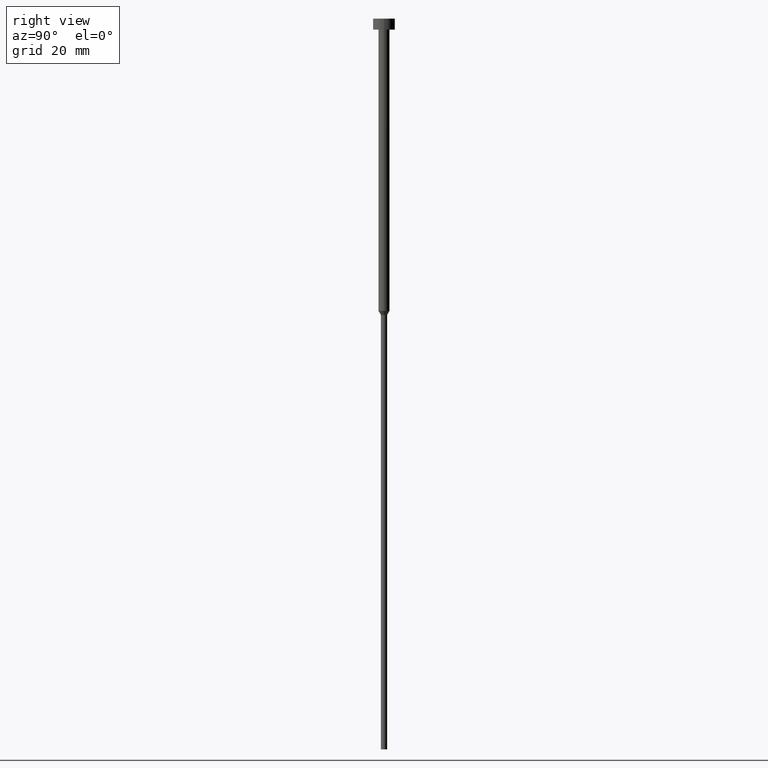
[diagram: clean part render]
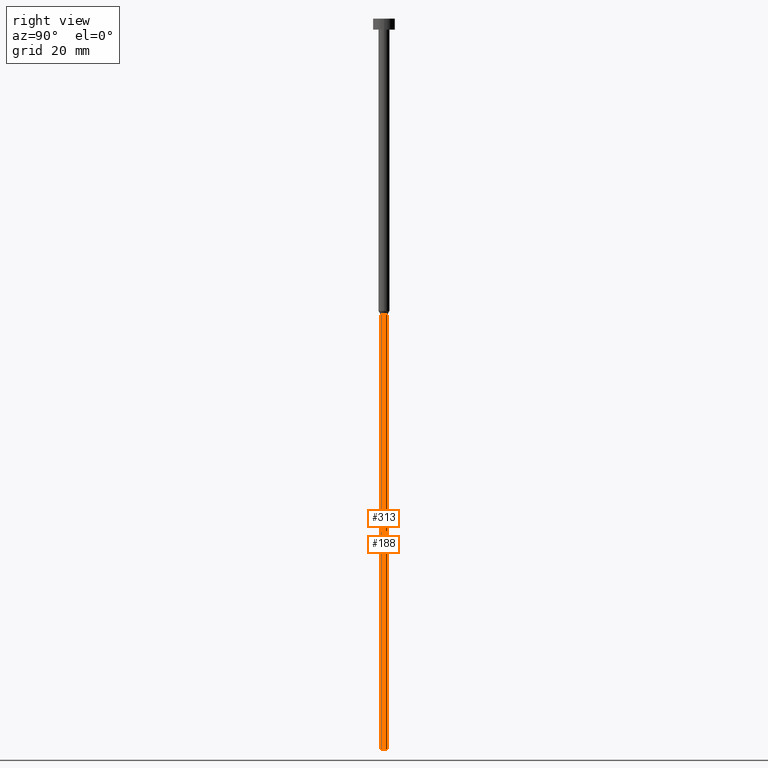
[diagram: same view with one multi-face feature highlighted, each face labeled with its STEP entity id]
A machine part, right view. The highlighted faces form ONE feature: a constant-radius fillet chain: 2 tangent blend faces with common blend radius 0.85 mm. The faces share edges in the B-rep.
Their STEP definitions:
[1] entity #188 (Cylinder):
#6 = VERTEX_POINT ( 'NONE', #299 ) ;
#10 = VERTEX_POINT ( 'NONE', #164 ) ;
#13 = CARTESIAN_POINT ( 'NONE',  ( -0.8499999999999998668, 1.040949779275250017E-16, -200.0000000000000000 ) ) ;
#30 = DIRECTION ( 'NONE',  ( -0.000000000000000000, -0.000000000000000000, 1.000000000000000000 ) ) ;
#35 = EDGE_CURVE ( 'NONE', #63, #48, #183, .T. ) ;
#36 = FACE_OUTER_BOUND ( 'NONE', #285, .T. ) ;
#41 = ORIENTED_EDGE ( 'NONE', *, *, #35, .T. ) ;
#45 = AXIS2_PLACEMENT_3D ( 'NONE', #275, #302, #49 ) ;
#48 = VERTEX_POINT ( 'NONE', #13 ) ;
#49 = DIRECTION ( 'NONE',  ( 1.000000000000000000, 0.000000000000000000, 0.000000000000000000 ) ) ;
#63 = VERTEX_POINT ( 'NONE', #337 ) ;
#100 = DIRECTION ( 'NONE',  ( 1.000000000000000000, 0.000000000000000000, 0.000000000000000000 ) ) ;
#111 = ORIENTED_EDGE ( 'NONE', *, *, #297, .T. ) ;
#118 = ORIENTED_EDGE ( 'NONE', *, *, #198, .F. ) ;
#142 = EDGE_CURVE ( 'NONE', #6, #10, #344, .T. ) ;
#145 = LINE ( 'NONE', #250, #350 ) ;
#164 = CARTESIAN_POINT ( 'NONE',  ( -0.8499999999999998668, 1.040949779275250017E-16, -81.12583302491977122 ) ) ;
#183 = CIRCLE ( 'NONE', #45, 0.8499999999999998668 ) ;
#188 = ADVANCED_FACE ( 'NONE', ( #36 ), #206, .T. ) ;
#198 = EDGE_CURVE ( 'NONE', #63, #6, #145, .T. ) ;
#200 = AXIS2_PLACEMENT_3D ( 'NONE', #254, #314, #286 ) ;
#206 = CYLINDRICAL_SURFACE ( 'NONE', #200, 0.8499999999999998668 ) ;
#225 = CARTESIAN_POINT ( 'NONE',  ( 0.000000000000000000, 0.000000000000000000, -81.12583302491977122 ) ) ;
#250 = CARTESIAN_POINT ( 'NONE',  ( 0.8499999999999998668, 0.000000000000000000, 0.000000000000000000 ) ) ;
#254 = CARTESIAN_POINT ( 'NONE',  ( 0.000000000000000000, 0.000000000000000000, 0.000000000000000000 ) ) ;
#274 = DIRECTION ( 'NONE',  ( -0.000000000000000000, -0.000000000000000000, 1.000000000000000000 ) ) ;
#275 = CARTESIAN_POINT ( 'NONE',  ( 0.000000000000000000, 0.000000000000000000, -200.0000000000000000 ) ) ;
#276 = CARTESIAN_POINT ( 'NONE',  ( -0.8499999999999998668, 1.040949779275250017E-16, 0.000000000000000000 ) ) ;
#285 = EDGE_LOOP ( 'NONE', ( #41, #111, #310, #118 ) ) ;
#286 = DIRECTION ( 'NONE',  ( 1.000000000000000000, 0.000000000000000000, 0.000000000000000000 ) ) ;
#287 = VECTOR ( 'NONE', #274, 1000.000000000000000 ) ;
#297 = EDGE_CURVE ( 'NONE', #48, #10, #301, .T. ) ;
#299 = CARTESIAN_POINT ( 'NONE',  ( 0.8499999999999998668, 0.000000000000000000, -81.12583302491977122 ) ) ;
#301 = LINE ( 'NONE', #276, #287 ) ;
#302 = DIRECTION ( 'NONE',  ( -0.000000000000000000, -0.000000000000000000, 1.000000000000000000 ) ) ;
#310 = ORIENTED_EDGE ( 'NONE', *, *, #142, .F. ) ;
#311 = DIRECTION ( 'NONE',  ( -0.000000000000000000, -0.000000000000000000, 1.000000000000000000 ) ) ;
#314 = DIRECTION ( 'NONE',  ( -0.000000000000000000, -0.000000000000000000, 1.000000000000000000 ) ) ;
#326 = AXIS2_PLACEMENT_3D ( 'NONE', #225, #30, #100 ) ;
#337 = CARTESIAN_POINT ( 'NONE',  ( 0.8499999999999998668, 0.000000000000000000, -200.0000000000000000 ) ) ;
#344 = CIRCLE ( 'NONE', #326, 0.8499999999999998668 ) ;
#350 = VECTOR ( 'NONE', #311, 1000.000000000000000 ) ;
[2] entity #313 (Cylinder):
#6 = VERTEX_POINT ( 'NONE', #299 ) ;
#8 = ORIENTED_EDGE ( 'NONE', *, *, #166, .F. ) ;
#10 = VERTEX_POINT ( 'NONE', #164 ) ;
#11 = DIRECTION ( 'NONE',  ( -0.000000000000000000, -0.000000000000000000, 1.000000000000000000 ) ) ;
#13 = CARTESIAN_POINT ( 'NONE',  ( -0.8499999999999998668, 1.040949779275250017E-16, -200.0000000000000000 ) ) ;
#43 = AXIS2_PLACEMENT_3D ( 'NONE', #117, #108, #239 ) ;
#48 = VERTEX_POINT ( 'NONE', #13 ) ;
#55 = EDGE_CURVE ( 'NONE', #48, #63, #189, .T. ) ;
#63 = VERTEX_POINT ( 'NONE', #337 ) ;
#72 = AXIS2_PLACEMENT_3D ( 'NONE', #308, #11, #96 ) ;
#89 = ORIENTED_EDGE ( 'NONE', *, *, #198, .T. ) ;
#96 = DIRECTION ( 'NONE',  ( 1.000000000000000000, 0.000000000000000000, 0.000000000000000000 ) ) ;
#108 = DIRECTION ( 'NONE',  ( -0.000000000000000000, -0.000000000000000000, 1.000000000000000000 ) ) ;
#109 = FACE_OUTER_BOUND ( 'NONE', #223, .T. ) ;
#117 = CARTESIAN_POINT ( 'NONE',  ( 0.000000000000000000, 0.000000000000000000, 0.000000000000000000 ) ) ;
#128 = DIRECTION ( 'NONE',  ( 1.000000000000000000, 0.000000000000000000, 0.000000000000000000 ) ) ;
#145 = LINE ( 'NONE', #250, #350 ) ;
#164 = CARTESIAN_POINT ( 'NONE',  ( -0.8499999999999998668, 1.040949779275250017E-16, -81.12583302491977122 ) ) ;
#166 = EDGE_CURVE ( 'NONE', #10, #6, #211, .T. ) ;
#189 = CIRCLE ( 'NONE', #245, 0.8499999999999998668 ) ;
#196 = ORIENTED_EDGE ( 'NONE', *, *, #297, .F. ) ;
#198 = EDGE_CURVE ( 'NONE', #63, #6, #145, .T. ) ;
#211 = CIRCLE ( 'NONE', #72, 0.8499999999999998668 ) ;
#223 = EDGE_LOOP ( 'NONE', ( #196, #304, #89, #8 ) ) ;
#239 = DIRECTION ( 'NONE',  ( 1.000000000000000000, 0.000000000000000000, 0.000000000000000000 ) ) ;
#245 = AXIS2_PLACEMENT_3D ( 'NONE', #280, #252, #128 ) ;
#250 = CARTESIAN_POINT ( 'NONE',  ( 0.8499999999999998668, 0.000000000000000000, 0.000000000000000000 ) ) ;
#252 = DIRECTION ( 'NONE',  ( -0.000000000000000000, -0.000000000000000000, 1.000000000000000000 ) ) ;
#274 = DIRECTION ( 'NONE',  ( -0.000000000000000000, -0.000000000000000000, 1.000000000000000000 ) ) ;
#276 = CARTESIAN_POINT ( 'NONE',  ( -0.8499999999999998668, 1.040949779275250017E-16, 0.000000000000000000 ) ) ;
#280 = CARTESIAN_POINT ( 'NONE',  ( 0.000000000000000000, 0.000000000000000000, -200.0000000000000000 ) ) ;
#287 = VECTOR ( 'NONE', #274, 1000.000000000000000 ) ;
#297 = EDGE_CURVE ( 'NONE', #48, #10, #301, .T. ) ;
#299 = CARTESIAN_POINT ( 'NONE',  ( 0.8499999999999998668, 0.000000000000000000, -81.12583302491977122 ) ) ;
#301 = LINE ( 'NONE', #276, #287 ) ;
#304 = ORIENTED_EDGE ( 'NONE', *, *, #55, .T. ) ;
#308 = CARTESIAN_POINT ( 'NONE',  ( 0.000000000000000000, 0.000000000000000000, -81.12583302491977122 ) ) ;
#311 = DIRECTION ( 'NONE',  ( -0.000000000000000000, -0.000000000000000000, 1.000000000000000000 ) ) ;
#313 = ADVANCED_FACE ( 'NONE', ( #109 ), #354, .T. ) ;
#337 = CARTESIAN_POINT ( 'NONE',  ( 0.8499999999999998668, 0.000000000000000000, -200.0000000000000000 ) ) ;
#350 = VECTOR ( 'NONE', #311, 1000.000000000000000 ) ;
#354 = CYLINDRICAL_SURFACE ( 'NONE', #43, 0.8499999999999998668 ) ;